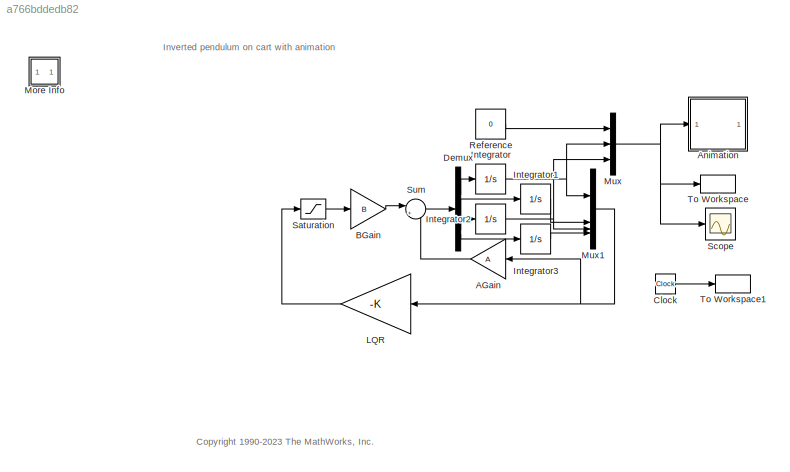
MODEL slx_a766bddedb82
KIND model
CONFIG AbsTol = 1e-6
CONFIG EnableMultiTasking = off
CONFIG FixedStep = 0.02
CONFIG MaxStep = 0.02
CONFIG MinStep = auto
CONFIG RelTol = 1e-3
CONFIG SampleTimeConstraint = Unconstrained
CONFIG SolverName = FixedStepAuto
CONFIG StartTime = 0
CONFIG StopTime = 10
BLOCK [Gain] AGain
  Gain = A
  Multiplication = Matrix(K*u)
  NameLocation = top
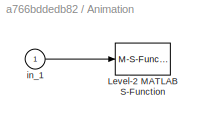
BLOCK [SubSystem] Animation
BLOCK [M-S-Function] Animation/Level-2 MATLAB S-Function
  FunctionName = pendan
  Parameters = RefBlock
BLOCK [Inport] Animation/in_1
BLOCK [Gain] BGain
  Gain = B
  Multiplication = Matrix(K*u)
BLOCK [Clock] Clock
BLOCK [Demux] Demux
BLOCK [Integrator] Integrator
BLOCK [Integrator] Integrator1
BLOCK [Integrator] Integrator2
  InitialCondition = .03
BLOCK [Integrator] Integrator3
  InitialCondition = .05
BLOCK [Gain] LQR
  Gain = -K
  Multiplication = Matrix(K*u)
  NameLocation = top
BLOCK [SubSystem] More Info
  OpenFcn = showExample('simulink_general/penddemoExample')
BLOCK [Mux] Mux
  DisplayOption = bar
  Inputs = 3
BLOCK [Mux] Mux1
  DisplayOption = bar
BLOCK [Constant] Reference
  Value = 0
BLOCK [Saturate] Saturation
  LowerLimit = -10
  UpperLimit = 10
BLOCK [Scope] Scope
  ActiveDisplayYMaximum = 0.71919
  ActiveDisplayYMinimum = -5.9149
  Floating = off
  GraphicalSettings = {"GraphicalSettings":{"LegacySettings":true,"Style":{"AxesScalingProperties":{"AxesScaling":"Auto","ScaleAxesLimitsAtStop":false},"Style":{"AxesColor":"[0 0 0]","ChannelNames":["","Cart Position","Pendulum Position"],"ColorOrder":"[1 1 0.0666666666666667;0.0745098039215686 0.623529411764706 1;1 0.411764705882353 0.16078431372549;0.392156862745098 0.831372549019608 0.0745098039215686;0.717647058823...<+502ch>
  MaximizeAxes = Auto
  MultipleDisplayCache = [{"MaxYLimMag":5.9149,"MaxYLimReal":0.71919,"MinYLimMag":0,"MinYLimReal":-5.9149,"PlotAsMagnitudePhase":false,"ShowGrid":true,"ShowLegend":true,"Title":"%<SignalLabel>","YLabel":"Refernce and Cart Position (m), Pendulum Position (rad)"}]
  NumInputPorts = 1
  ShowLegend = on
  ShowTimeAxisLabel = on
  TimeUnits = Seconds
  WasSavedAsWebScope = on
  WindowPosition = [620 249.666666666667 444 398]
  YLabel = Refernce and Cart Position (m), Pendulum Position (rad)
BLOCK [Sum] Sum
  Inputs = |++
BLOCK [ToWorkspace] To Workspace
  SampleTime = 0.1
  VariableName = y
BLOCK [ToWorkspace] To Workspace1
  SampleTime = 0.1
  VariableName = t
ANNOTATION (root): <copyright redacted>
ANNOTATION (root): Inverted pendulum on cart with animation
LINE AGain:1 -> Sum:2
LINE Animation/in_1:1 -> Animation/Level-2 MATLAB S-Function:1
LINE BGain:1 -> Sum:1
LINE Clock:1 -> To Workspace1:1
LINE Demux:1 -> Integrator:1
LINE Demux:2 -> Integrator1:1
LINE Demux:3 -> Integrator2:1
LINE Demux:4 -> Integrator3:1
LINE Integrator1:1 -> Mux1:2
NET Integrator2:1 -> Mux1:3, Mux:3
LINE Integrator3:1 -> Mux1:4
NET Integrator:1 -> Mux1:1, Mux:2
LINE LQR:1 -> Saturation:1
NET Mux1:1 -> AGain:1, LQR:1
NET Mux:1 -> Animation:1, Scope:1, To Workspace:1
LINE Reference:1 -> Mux:1
LINE Saturation:1 -> BGain:1
LINE Sum:1 -> Demux:1
note: NET lines group one-source signal fan-out (src -> all destinations, sorted); 1:1 wires keep LINE
